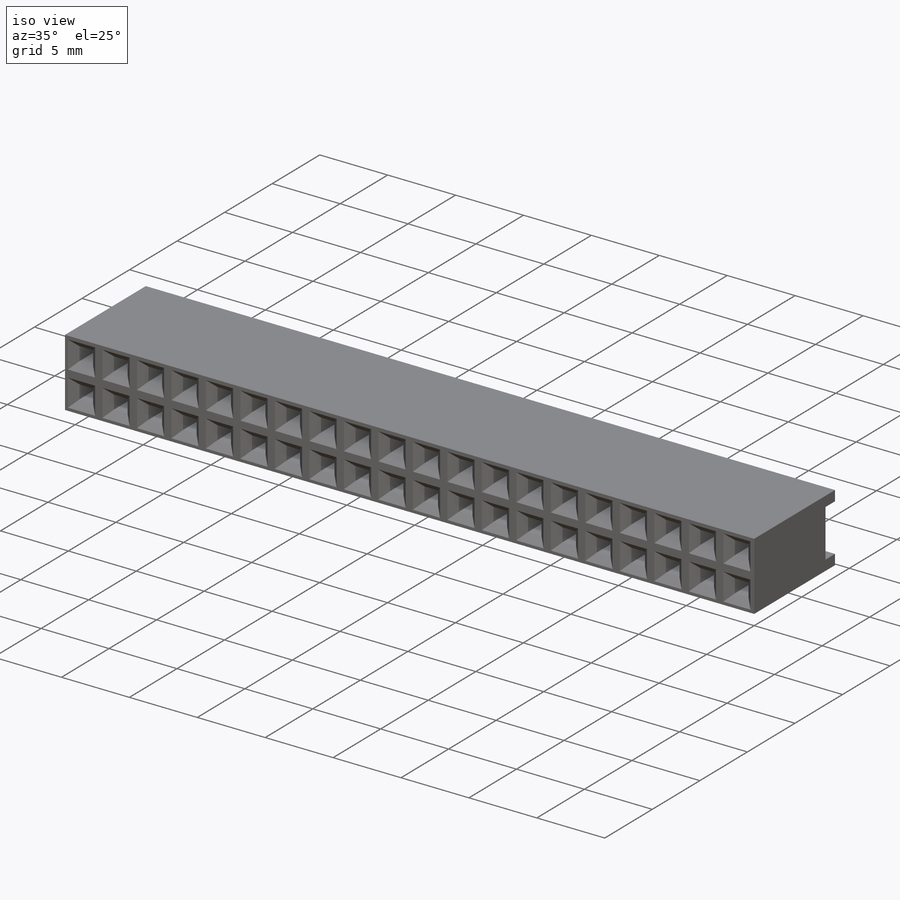
[diagram: iso view]
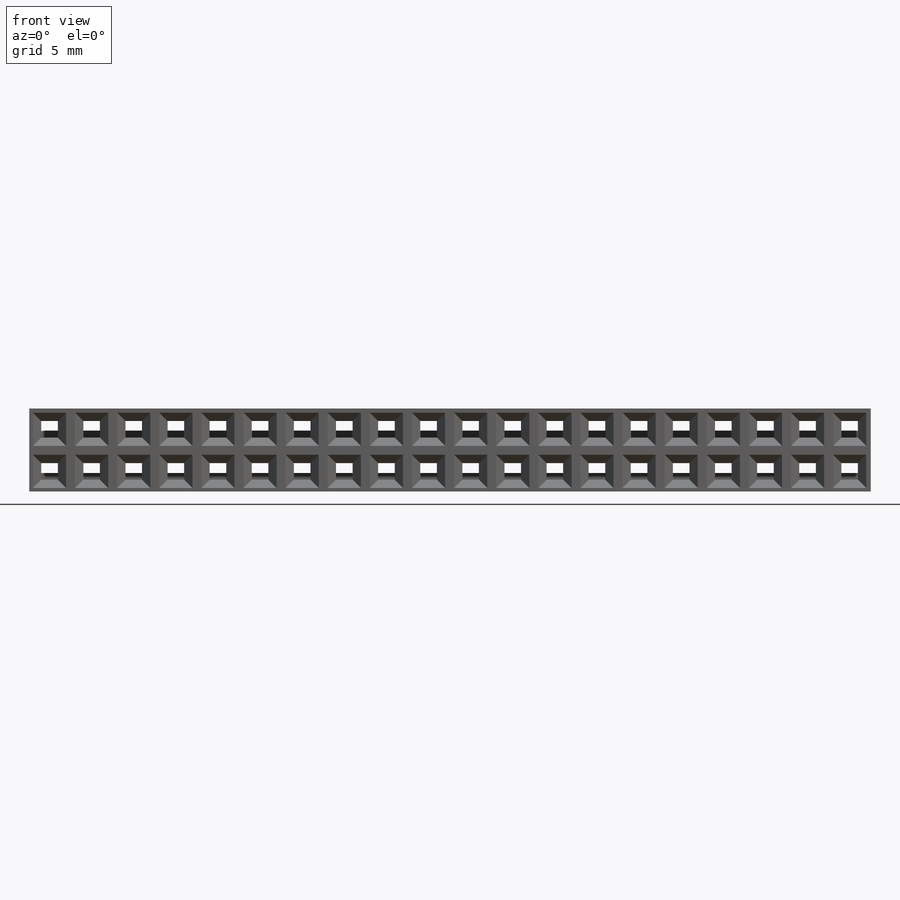
[diagram: front view]
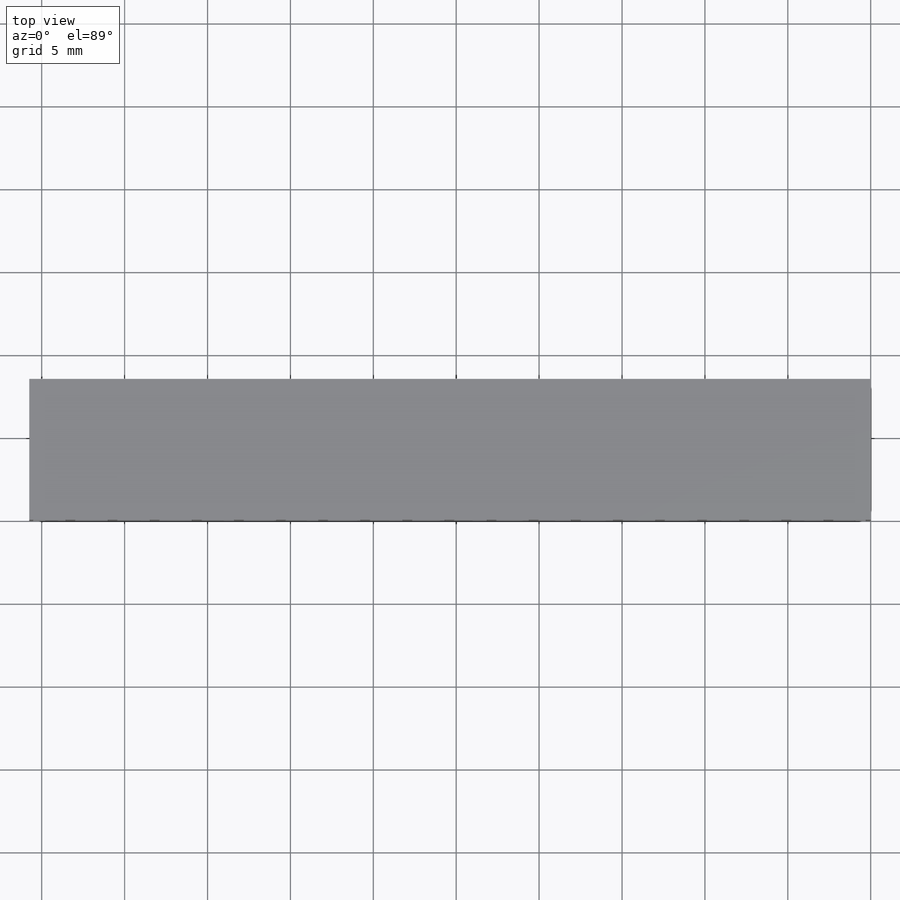
[diagram: top view]
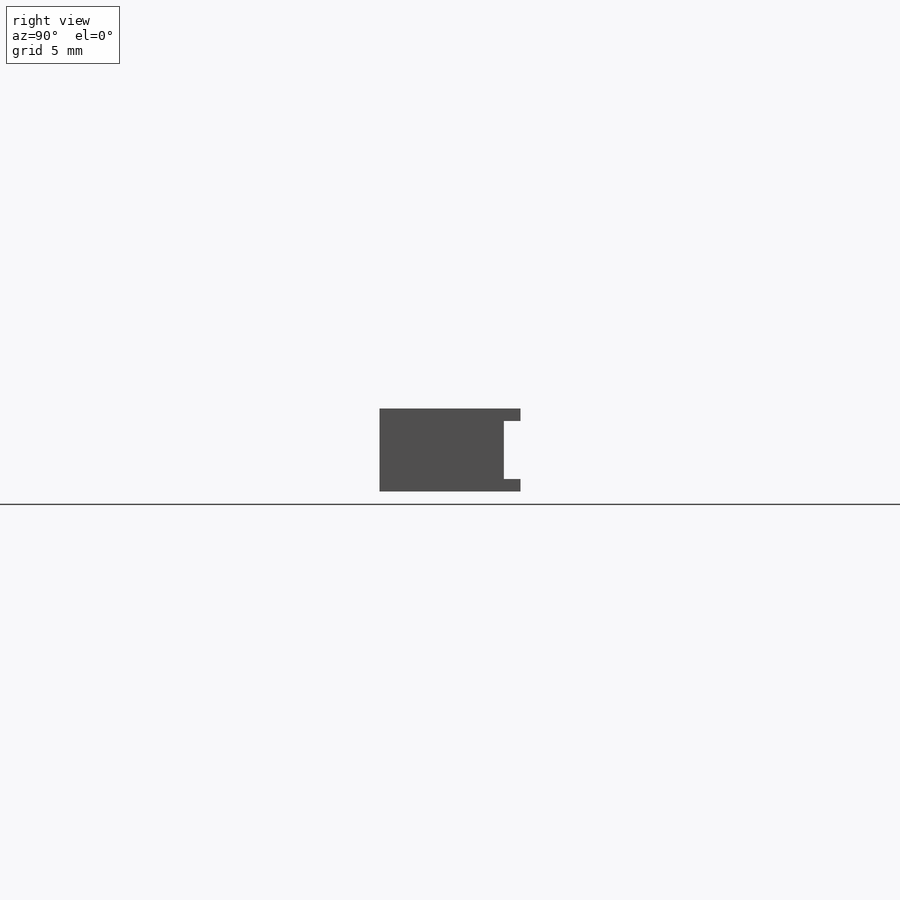
[diagram: right view]
SOLIDWORKS PART (.sldprt)
format: sldprt  version: not decoded by parser v0  size: 551,424 bytes
history: native  units: mm
features: sketch x4, cut_extrude x3, material x1, extrude x1, pattern_linear x1 (+11 scaffold rows collapsed)
feature tree (21):
  scaffold x11  (default folders/planes/origin — collapsed)
  material  "ABS"
  sketch  "Sketch1"  dims[c1.D1=3.5mm c1.D2=0.75mm c1.D3=1.0mm c1.D4=8.5mm c1.D5=5.0mm c2.D1=0.0mm]
  extrude  "Boss-Extrude1"  Depth=50.75mm
  sketch  "Sketch2"  dims[D1=0.6mm D2=0.27mm D3=2.0mm]
  cut_extrude  "Cut-Extrude1"  Depth=5.5mm
  sketch  "Sketch3"  dims[D1=1.0mm D2=0.77mm]
  cut_extrude  "Cut-Extrude2"  Depth=6mm
  sketch  "Sketch4"  dims[D1=0.5mm]
  cut_extrude  "Cut-Extrude3"  Depth=0.5mm
  pattern_linear  "LPattern1"  Count1=20 Count2=2 Spacing1=2.54mm Spacing2=2.54mm
decode coverage: 9 of 9 modeling features carry decoded parameters
note: suppression state not decoded; provenance and decode notes live in map.json
